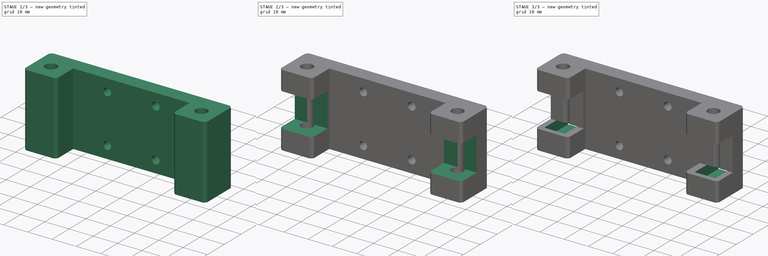
[diagram: build sequence overview — one tinted view per stage of 3, left to right]
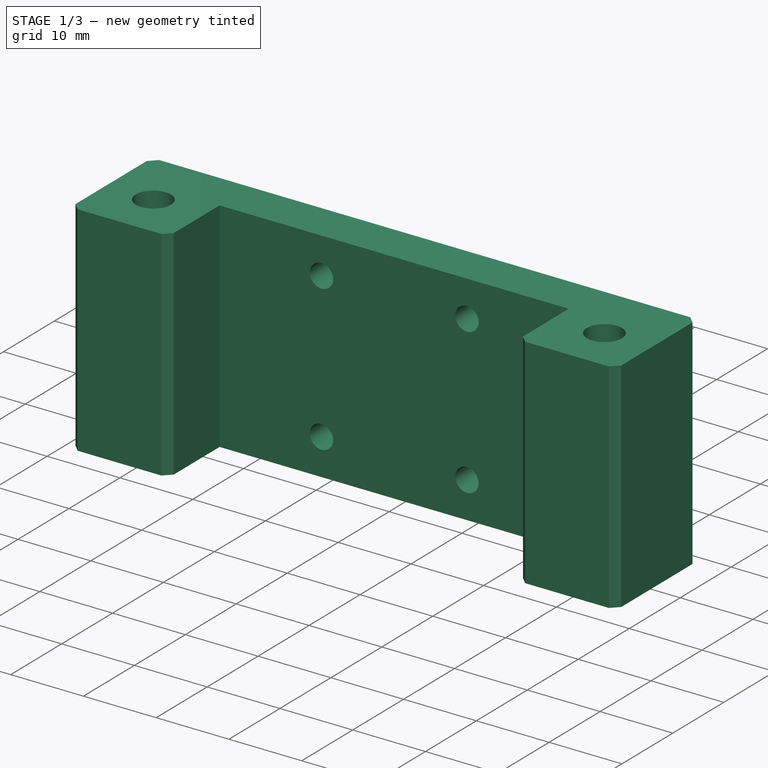
[diagram: stage 1 of 3 — iso view after this stage's code; geometry added in this stage tinted green]
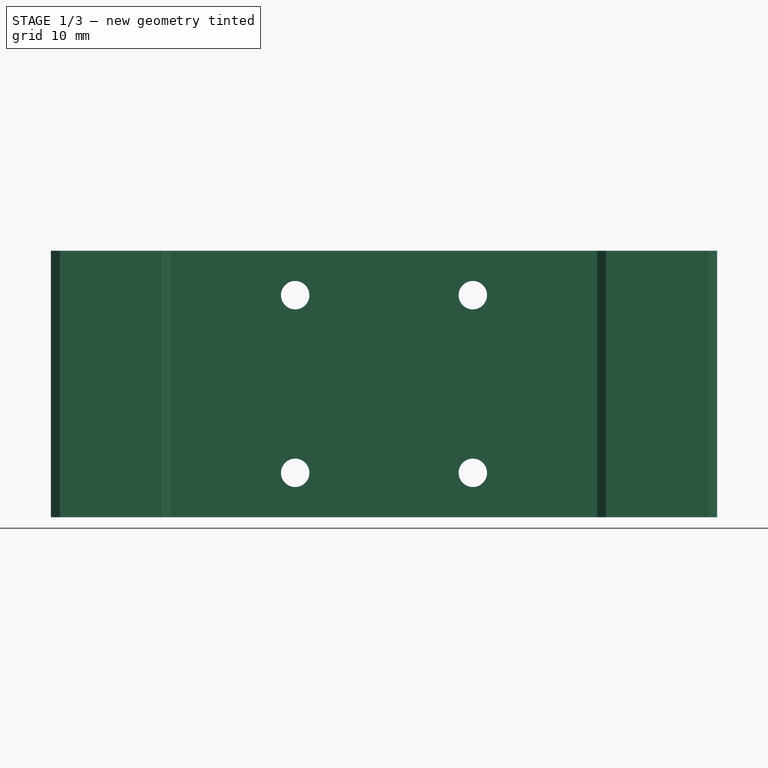
[diagram: stage 1 of 3 — front view after this stage's code; geometry added in this stage tinted green]
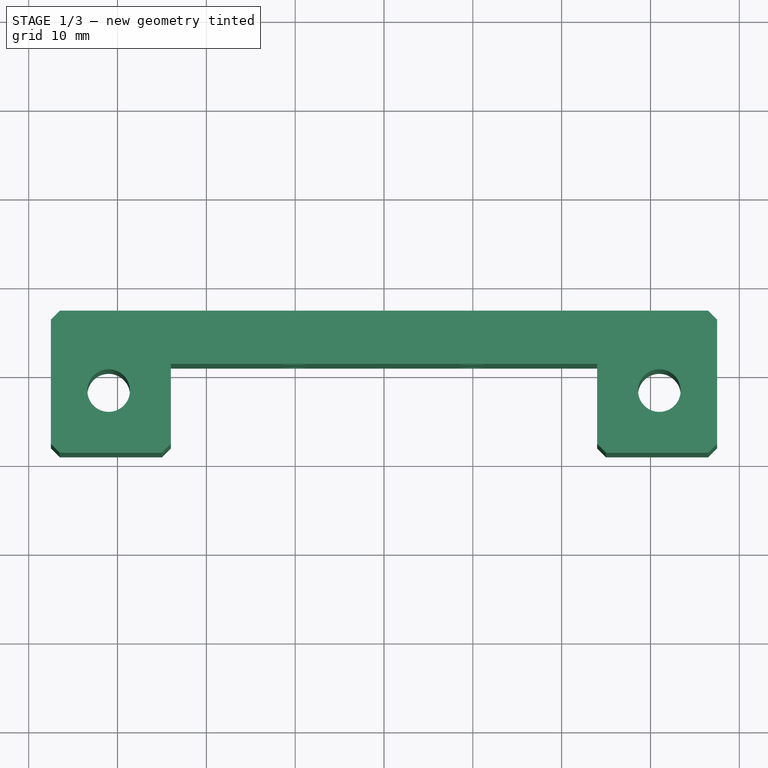
[diagram: stage 1 of 3 — top view after this stage's code; geometry added in this stage tinted green]
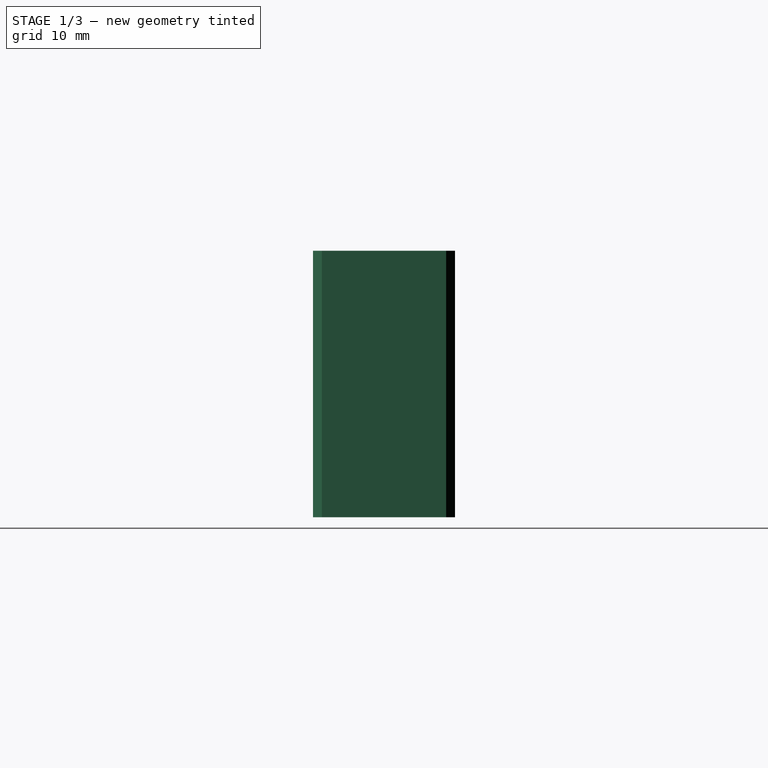
[diagram: stage 1 of 3 — right view after this stage's code; geometry added in this stage tinted green]
FCSTD DOCUMENT  (FreeCAD 0.20R29177 (Git))
Label: x-gantry-block-mount
License: All rights reserved
LicenseURL: http://en.wikipedia.org/wiki/All_rights_reserved
objects: Sketcher::SketchObject×4, PartDesign::Mirrored×4, PartDesign::Pocket×3, PartDesign::Pad×1, PartDesign::Chamfer×1, PartDesign::MultiTransform×1, PartDesign::Body×1
note: 20 computed .brp shape members not serialized (recipe doc carries the construction recipe); baked Part::Feature solids carry a one-line shape summary decoded from their .brp

FEATURE [Sketcher::SketchObject] Sketch024
  FullyConstrained = true
  MapMode = 5
  Support = -> [XY_Plane001]
  sketch-geometry (10):
    g0: Circle CenterX=-31 CenterY=-2 CenterZ=0 NormalX=0 NormalY=0 NormalZ=1 AngleXU=0 Radius=2.4
    g1: Circle CenterX=31 CenterY=-2 CenterZ=0 NormalX=0 NormalY=0 NormalZ=1 AngleXU=0 Radius=2.4
    g2: LineSegment StartX=-37.5 StartY=7 StartZ=0 EndX=37.5 EndY=7 EndZ=0
    g3: LineSegment StartX=37.5 StartY=7 StartZ=0 EndX=37.5 EndY=-9 EndZ=0
    g4: LineSegment StartX=37.5 StartY=-9 StartZ=0 EndX=24 EndY=-9 EndZ=0
    g5: LineSegment StartX=-37.5 StartY=-9 StartZ=0 EndX=-37.5 EndY=7 EndZ=0
    g6: LineSegment StartX=24 StartY=-9 StartZ=0 EndX=24 EndY=1 EndZ=0
    g7: LineSegment StartX=24 StartY=1 StartZ=0 EndX=-24 EndY=1 EndZ=0
    g8: LineSegment StartX=-24 StartY=1 StartZ=0 EndX=-24 EndY=-9 EndZ=0
    g9: LineSegment StartX=-24 StartY=-9 StartZ=0 EndX=-37.5 EndY=-9 EndZ=0
  constraints (27):
    c: DistanceX(g0,g1) = 62  'HoleSpacing'
    c: Diameter(g0) = 4.8
    c: Symmetric(g1,g0,g-2)
    c: Equal(g1,g0)
    c: Coincident(g2,g3)
    c: Coincident(g3,g4)
    c: Coincident(g9,g5)
    c: Coincident(g5,g2)
    c: Horizontal(g4)
    c: Vertical(g3)
    c: Vertical(g5)
    c: Coincident(g6,g7)
    c: Coincident(g7,g8)
    c: Vertical(g6)
    c: Vertical(g8)
    c: Symmetric(g2,g2,g-2)
    c: DistanceX(g2,g2) = 75
    c: Symmetric(g7,g6,g-2)
    c: Coincident(g9,g8)
    c: Coincident(g4,g6)
    c: Horizontal(g9)
    c: Equal(g6,g8)
    c: DistanceX(g7,g7) = 48
    c: DistanceY(g6,g2) = 6
    c: DistanceY(g5,g5) = 16
    c: DistanceY(g-1,g7) = 1
    c: DistanceY(g0,g-1) = 2
FEATURE [PartDesign::Pad] Pad005
  Direction = (0,0,1)
  Length = 30
  Length2 = 10
  Midplane = true
  Profile = -> Sketch024
  ReferenceAxis = -> Sketch024 [N_Axis]
  Type = 0
FEATURE [Sketcher::SketchObject] Sketch025
  FullyConstrained = true
  MapMode = 5
  Placement = pos=(0,0,0) rot=(1,0,0;1.5708rad)
  Support = -> [XZ_Plane001]
  sketch-geometry (9):
    g0: LineSegment StartX=-10 StartY=10 StartZ=0 EndX=10 EndY=10 EndZ=0
    g1: LineSegment StartX=10 StartY=10 StartZ=0 EndX=10 EndY=-10 EndZ=0
    g2: LineSegment StartX=10 StartY=-10 StartZ=0 EndX=-10 EndY=-10 EndZ=0
    g3: LineSegment StartX=-10 StartY=-10 StartZ=0 EndX=-10 EndY=10 EndZ=0
    g4: LineSegment StartX=-10 StartY=0 StartZ=0 EndX=10 EndY=0 EndZ=0
    g5: Circle CenterX=-10 CenterY=10 CenterZ=0 NormalX=0 NormalY=0 NormalZ=1 AngleXU=0 Radius=1.6
    g6: Circle CenterX=10 CenterY=10 CenterZ=0 NormalX=0 NormalY=0 NormalZ=1 AngleXU=0 Radius=1.6
    g7: Circle CenterX=10 CenterY=-10 CenterZ=0 NormalX=0 NormalY=0 NormalZ=1 AngleXU=0 Radius=1.6
    g8: Circle CenterX=-10 CenterY=-10 CenterZ=0 NormalX=0 NormalY=0 NormalZ=1 AngleXU=0 Radius=1.6
  constraints (21):
    c: Coincident(g0,g1)
    c: Coincident(g1,g2)
    c: Coincident(g2,g3)
    c: Coincident(g3,g0)
    c: Horizontal(g0)
    c: Vertical(g1)
    c: DistanceY(g1,g1) = 20
    c: DistanceX(g2,g2) = 20
    c: Symmetric(g1,g2,g-2)
    c: PointOnObject(g4,g3)
    c: PointOnObject(g4,g1)
    c: Symmetric(g2,g0,g4)
    c: Coincident(g5,g0)
    c: Coincident(g6,g0)
    c: Coincident(g7,g1)
    c: Coincident(g8,g2)
    c: Equal(g8,g7)
    c: Equal(g7,g6)
    c: Equal(g6,g5)
    c: Diameter(g5) = 3.2
    c: Tangent(g4,g-1)
FEATURE [PartDesign::Pocket] Pocket015
  BaseFeature = -> Pad005
  Direction = (0,1,2e-16)
  Length = 5
  Length2 = 5
  Profile = -> Sketch025
  ReferenceAxis = -> Sketch025 [N_Axis]
  Type = 1
FEATURE [PartDesign::Chamfer] Chamfer004
  Angle = 45
  Base = -> Pocket015 [Edge1,Edge9,Edge4,Edge28,Edge38,Edge37]
  BaseFeature = -> Pocket015
  ChamferType = 0
  FlipDirection = false
  Size = 1
  Size2 = 1
  SupportTransform = false
  UseAllEdges = false
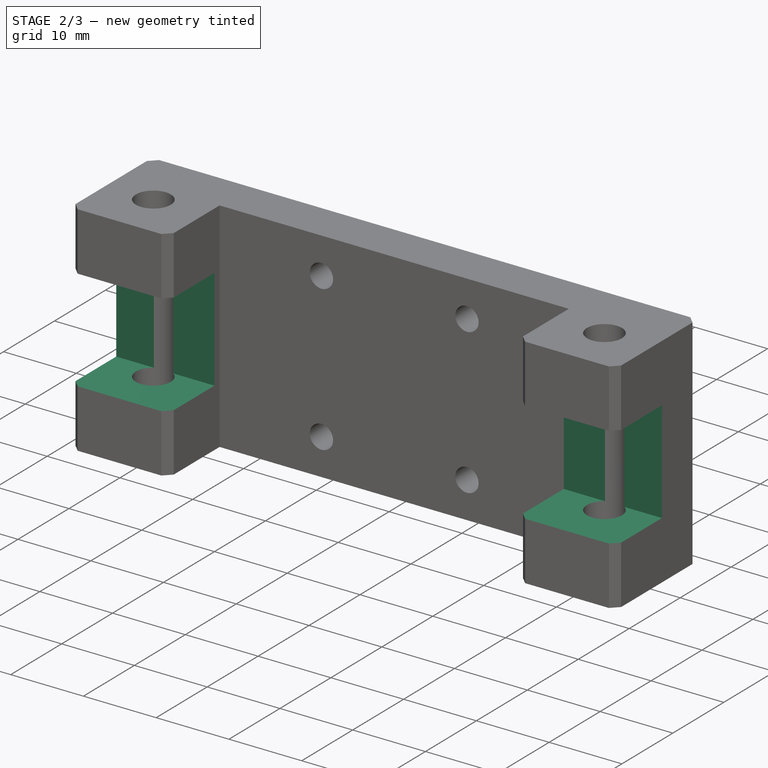
[diagram: stage 2 of 3 — iso view after this stage's code; geometry added in this stage tinted green]
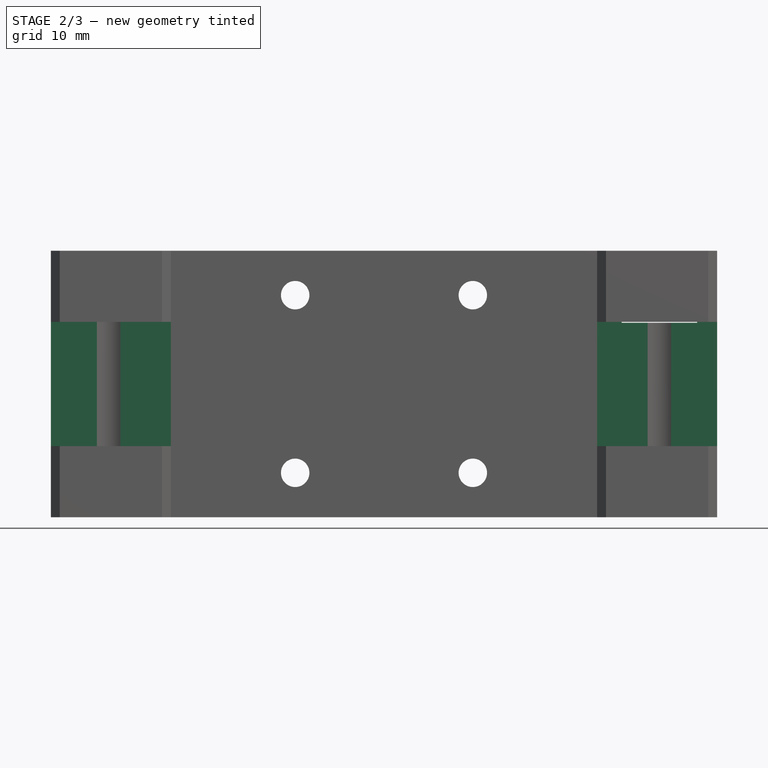
[diagram: stage 2 of 3 — front view after this stage's code; geometry added in this stage tinted green]
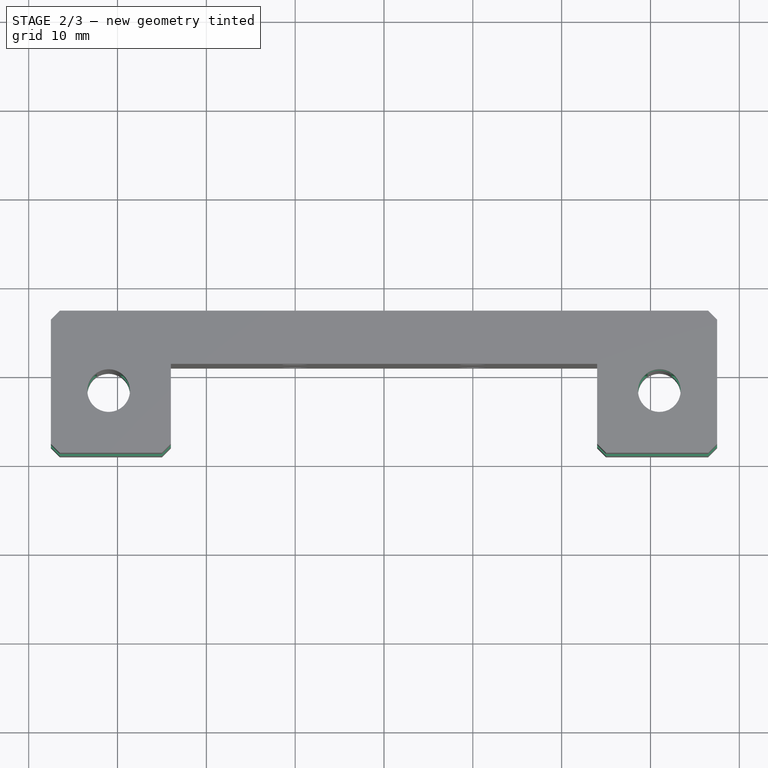
[diagram: stage 2 of 3 — top view after this stage's code; geometry added in this stage tinted green]
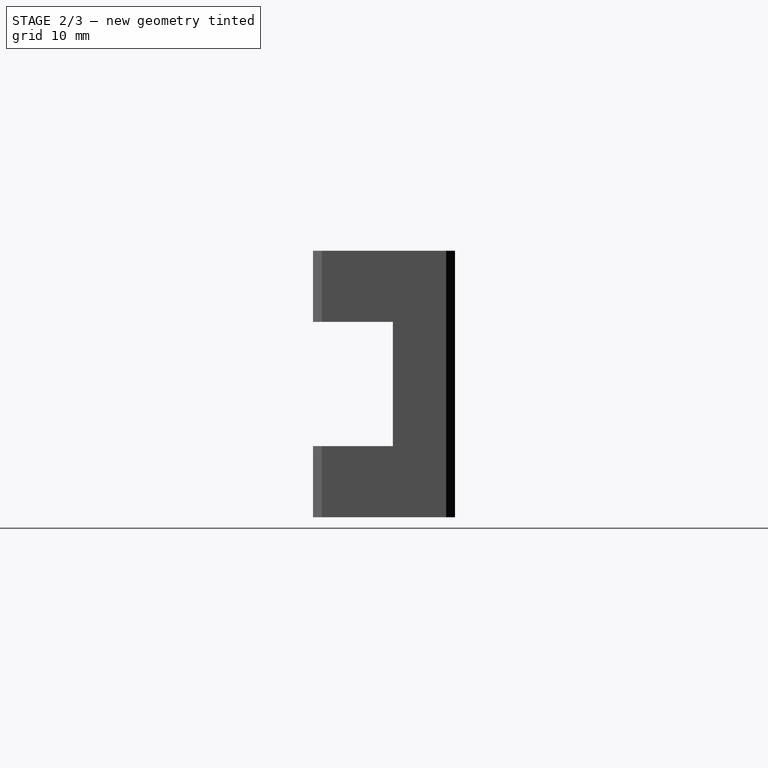
[diagram: stage 2 of 3 — right view after this stage's code; geometry added in this stage tinted green]
FEATURE [Sketcher::SketchObject] Sketch
  FullyConstrained = true
  MapMode = 5
  Placement = pos=(-37.5,0,0) rot=(0.57735,-0.57735,-0.57735;2.0944rad)
  Support = -> [Pad005]
  sketch-geometry (4):
    g0: LineSegment StartX=10 StartY=7 StartZ=0 EndX=0 EndY=7 EndZ=0
    g1: LineSegment StartX=0 StartY=7 StartZ=0 EndX=0 EndY=-7 EndZ=0
    g2: LineSegment StartX=0 StartY=-7 StartZ=0 EndX=10 EndY=-7 EndZ=0
    g3: LineSegment StartX=10 StartY=-7 StartZ=0 EndX=10 EndY=7 EndZ=0
  constraints (11):
    c: Coincident(g0,g1)
    c: Coincident(g1,g2)
    c: Coincident(g2,g3)
    c: Coincident(g3,g0)
    c: Horizontal(g0)
    c: Horizontal(g2)
    c: DistanceY(g3,g3) = 14
    c: DistanceX(g0,g0) = 10
    c: Symmetric(g0,g1,g-1)
    c: Vertical(g3)
    c: PointOnObject(g0,g-2)
FEATURE [PartDesign::Pocket] Pocket
  BaseFeature = -> Chamfer004
  Direction = (1,0,0)
  Length = 5
  Length2 = 5
  Profile = -> Sketch
  ReferenceAxis = -> Sketch [N_Axis]
  Type = 1
FEATURE [Sketcher::SketchObject] Sketch026
  FullyConstrained = true
  MapMode = 5
  Placement = pos=(0,7,0) rot=(0,0.707107,0.707107;3.14159rad)
  Support = -> [Pocket]
  expr: Constraints[9] = <<Sketch024>>.Constraints.HoleSpacing
  sketch-geometry (8):
    g0: LineSegment StartX=-31 StartY=9 StartZ=0 EndX=31 EndY=9 EndZ=0
    g1: LineSegment StartX=31 StartY=9 StartZ=0 EndX=31 EndY=-9 EndZ=0
    g2: LineSegment StartX=31 StartY=-9 StartZ=0 EndX=-31 EndY=-9 EndZ=0
    g3: LineSegment StartX=-31 StartY=-9 StartZ=0 EndX=-31 EndY=9 EndZ=0
    g4: LineSegment StartX=-35.25 StartY=11.1 StartZ=0 EndX=-26.75 EndY=11.1 EndZ=0
    g5: LineSegment StartX=-26.75 StartY=11.1 StartZ=0 EndX=-26.75 EndY=6.9 EndZ=0
    g6: LineSegment StartX=-26.75 StartY=6.9 StartZ=0 EndX=-35.25 EndY=6.9 EndZ=0
    g7: LineSegment StartX=-35.25 StartY=6.9 StartZ=0 EndX=-35.25 EndY=11.1 EndZ=0
  constraints (22):
    c: Coincident(g0,g1)
    c: Coincident(g1,g2)
    c: Coincident(g2,g3)
    c: Coincident(g3,g0)
    c: Horizontal(g0)
    c: Horizontal(g2)
    c: Vertical(g1)
    c: Vertical(g3)
    c: Symmetric(g1,g0,g-1)
    c: DistanceX(g0,g0) = 62
    c: DistanceY(g3,g3) = 18
    c: Coincident(g4,g5)
    c: Coincident(g5,g6)
    c: Coincident(g6,g7)
    c: Coincident(g7,g4)
    c: Horizontal(g4)
    c: Horizontal(g6)
    c: Vertical(g5)
    c: Vertical(g7)
    c: Symmetric(g5,g4,g0)
    c: DistanceY(g7,g7) = 4.2
    c: DistanceX(g4,g4) = 8.5
FEATURE [PartDesign::Pocket] Pocket016
  BaseFeature = -> Pocket
  Direction = (0,-1,2e-16)
  Length = 14
  Length2 = 5
  Profile = -> Sketch026
  ReferenceAxis = -> Sketch026 [N_Axis]
  Type = 0
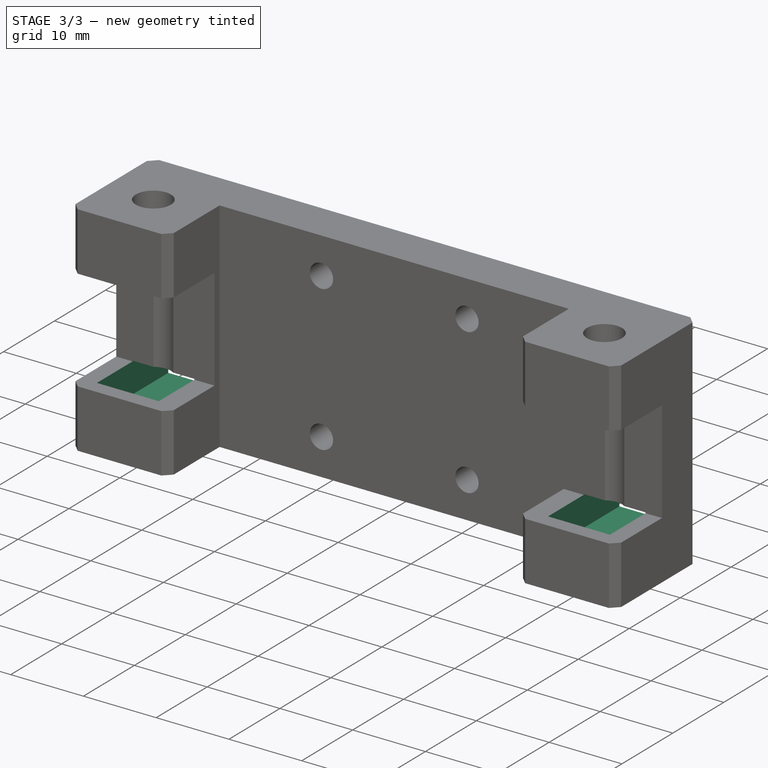
[diagram: stage 3 of 3 — iso view after this stage's code; geometry added in this stage tinted green]
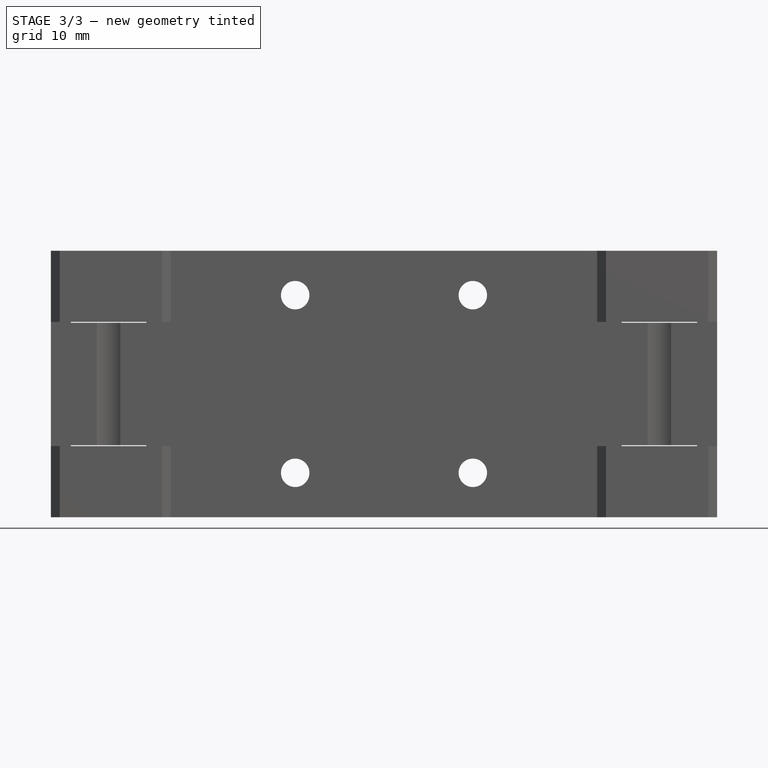
[diagram: stage 3 of 3 — front view after this stage's code; geometry added in this stage tinted green]
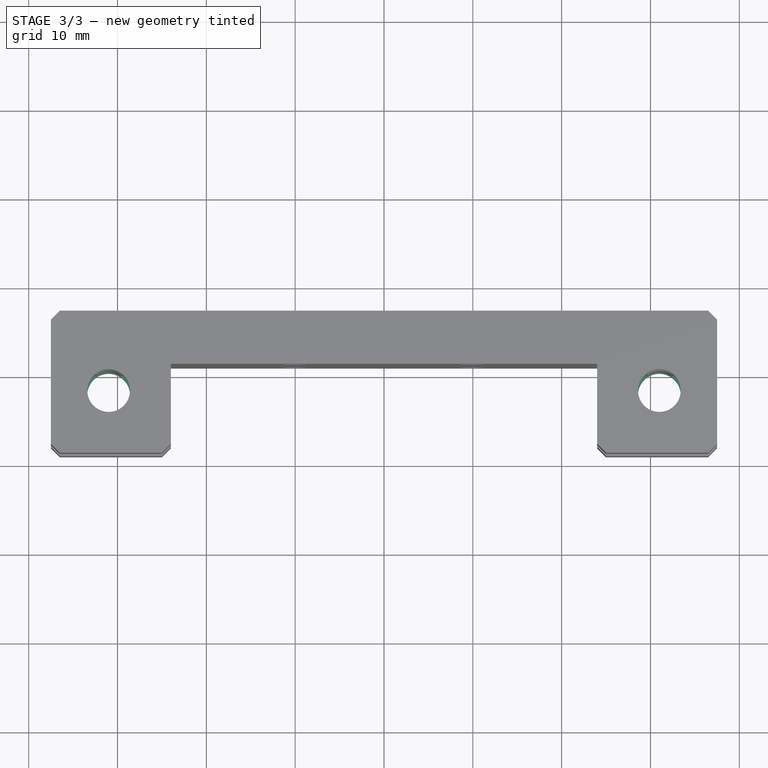
[diagram: stage 3 of 3 — top view after this stage's code; geometry added in this stage tinted green]
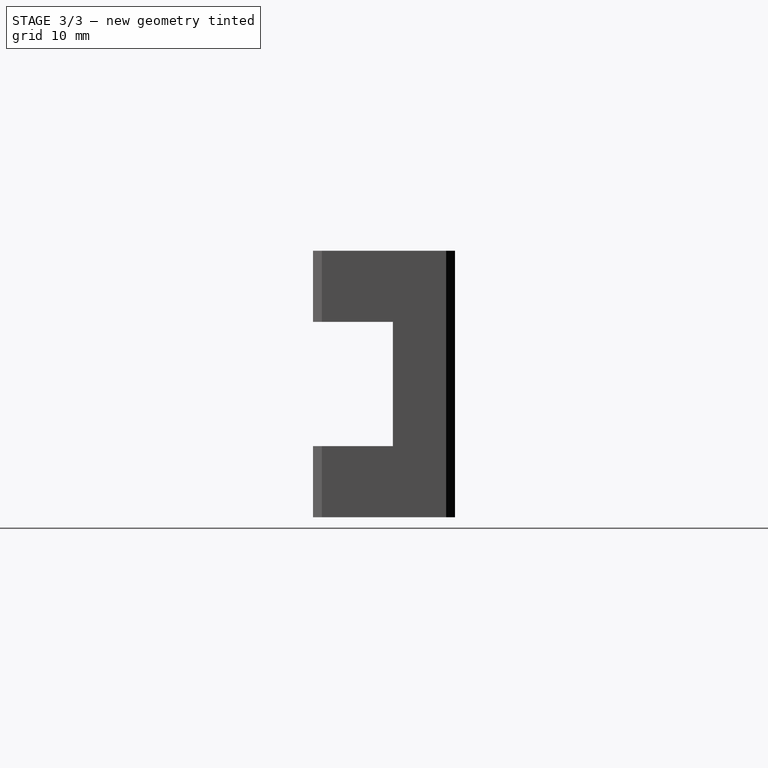
[diagram: stage 3 of 3 — right view after this stage's code; geometry added in this stage tinted green]
FEATURE [PartDesign::Mirrored] Mirrored
  BaseFeature = -> Pocket016
  MirrorPlane = -> Sketch026 [V_Axis]
  Originals = -> [Pocket016]
FEATURE [PartDesign::Mirrored] Mirrored001
  BaseFeature = -> Mirrored
  MirrorPlane = -> Sketch026 [H_Axis]
  Originals = -> [Pocket016]
FEATURE [PartDesign::Mirrored] Mirrored002
  MirrorPlane = -> Sketch026 [V_Axis]
FEATURE [PartDesign::Mirrored] Mirrored003
  MirrorPlane = -> Sketch026 [H_Axis]
FEATURE [PartDesign::MultiTransform] MultiTransform
  BaseFeature = -> Mirrored001
  Originals = -> [Pocket016]
  Transformations = -> [Mirrored002,Mirrored003]
FEATURE [PartDesign::Body] Body001
  Group = -> [Sketch024,Pad005,Sketch025,Pocket015,Chamfer004,Sketch,Pocket,Sketch026,Pocket016,Mirrored,Mirrored001,MultiTransform,Mirrored002,Mirrored003]
  Origin = -> Origin001
  Tip = -> MultiTransform
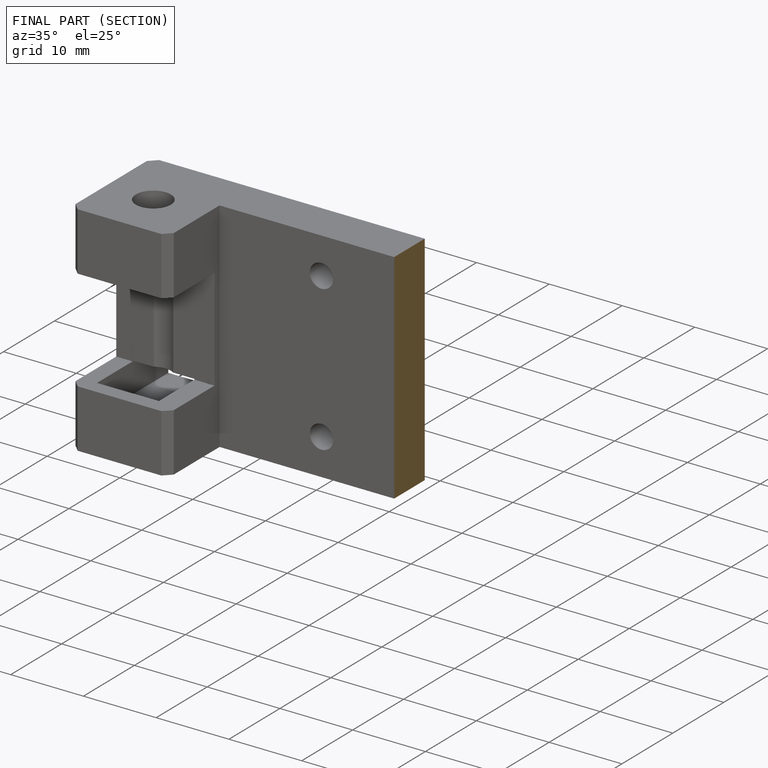
[diagram: finished part — half-section view (interior)]
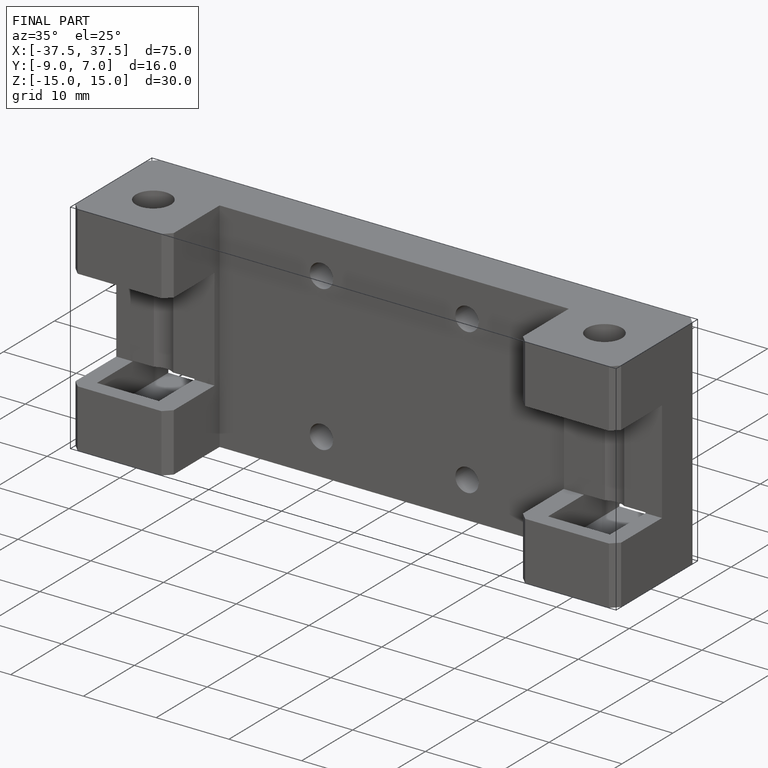
[diagram: finished part — iso view with bounding-box wireframe]
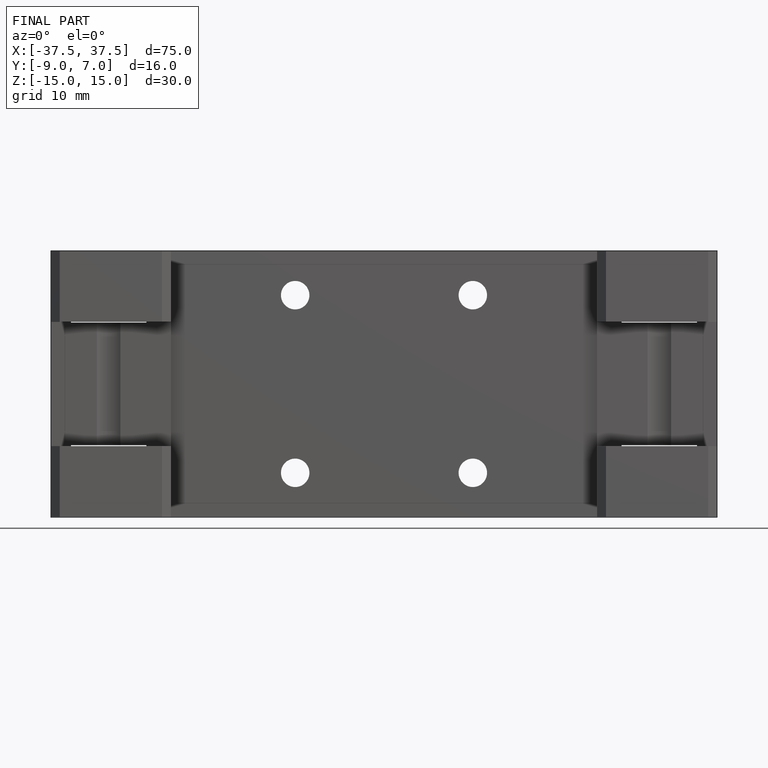
[diagram: finished part — front view with bounding-box wireframe]
